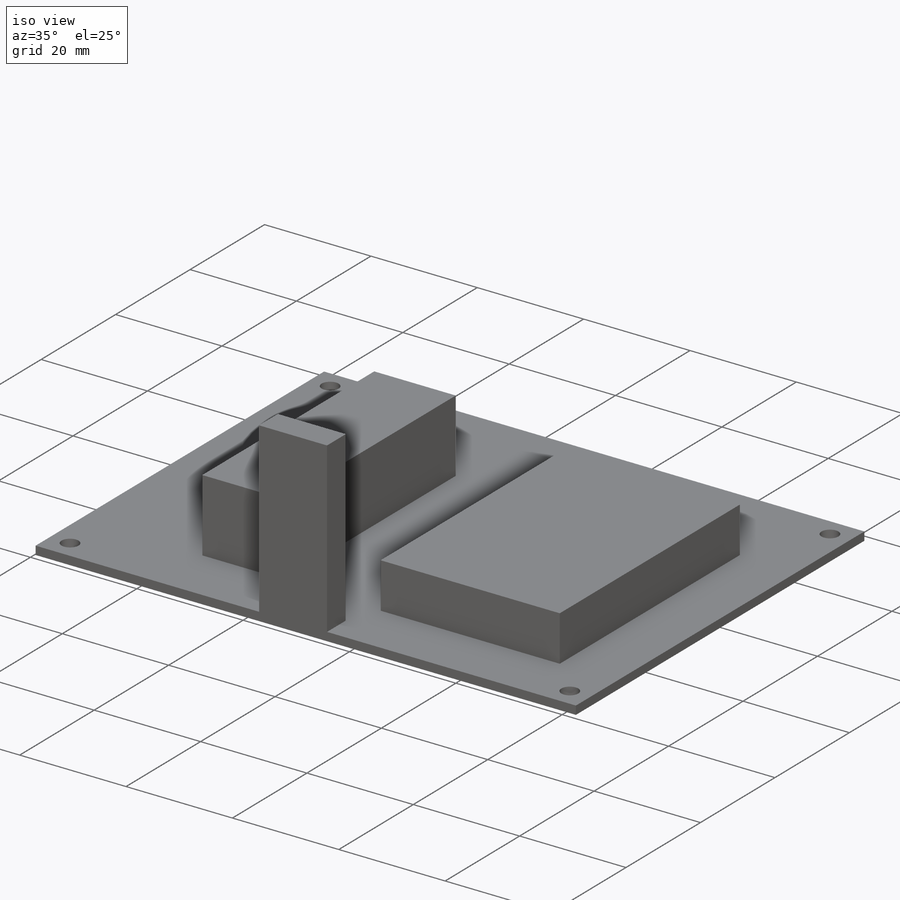
[diagram: iso view]
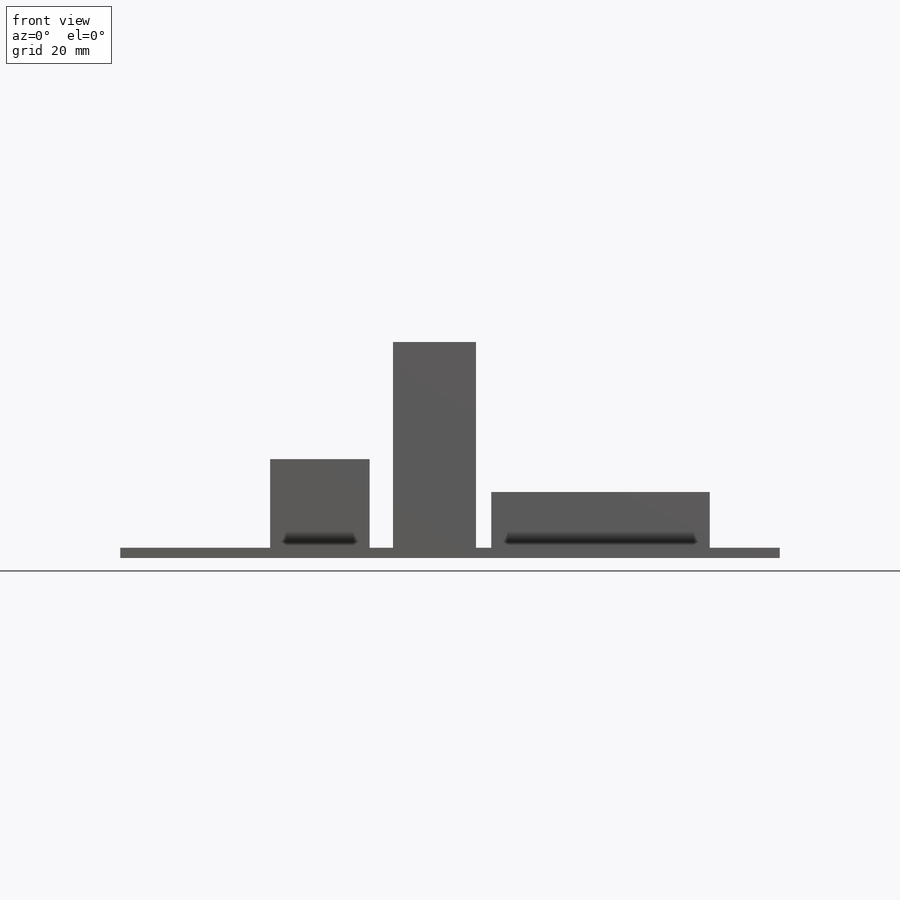
[diagram: front view]
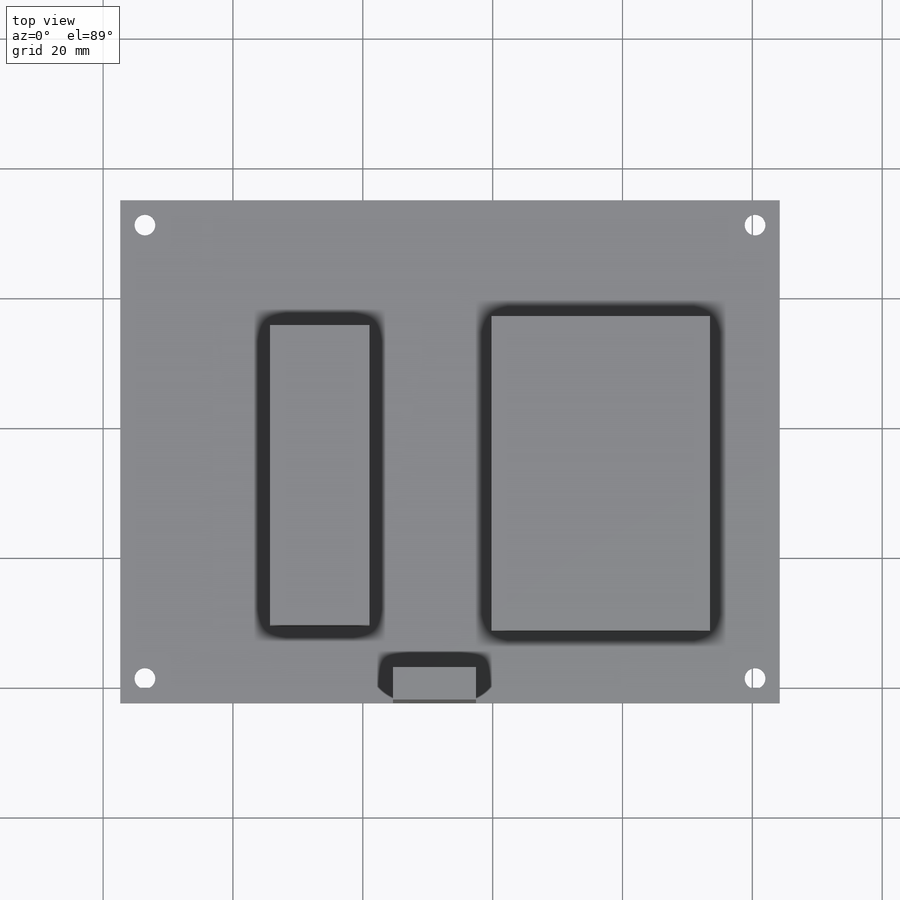
[diagram: top view]
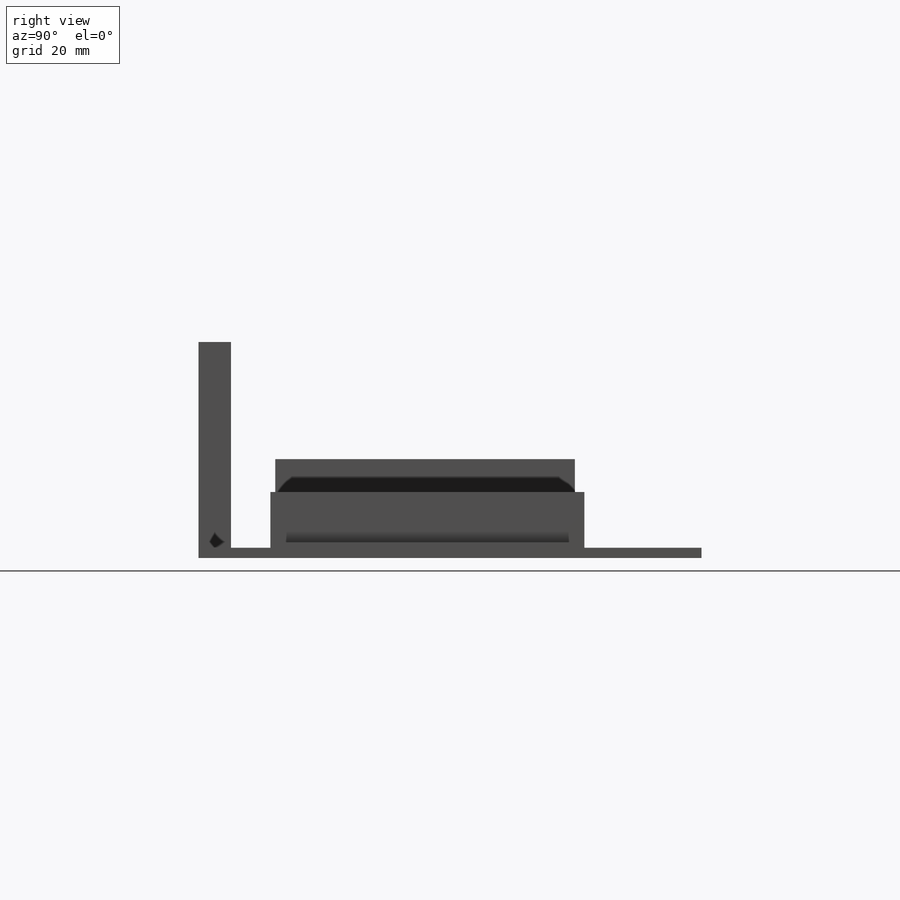
[diagram: right view]
SOLIDWORKS PART (.sldprt)
format: sldprt  version: not decoded by parser v0  size: 194,560 bytes
history: native  units: mm
features: sketch x5, extrude x4, material x1, cut_extrude x1 (+11 scaffold rows collapsed)
feature tree (22):
  scaffold x11  (default folders/planes/origin — collapsed)
  material  "Material <not specified>"
  sketch  "Sketch1"  dims[D1=101.6mm D2=77.47mm]
  extrude  "Boss-Extrude1"  Depth=1.5875mm
  sketch  "Sketch2"  dims[D5=3.2004mm D6=3.2004mm D7=3.2004mm D8=3.2004mm D1=3.81mm D2=3.81mm D3=73.66mm D4=97.79mm]
  cut_extrude  "Cut-Extrude1"  Depth=2.54mm
  sketch  "Sketch3"
  extrude  "Boss-Extrude2"  Depth=33.274mm
  sketch  "Sketch4"
  extrude  "Boss-Extrude3"  Depth=10.16mm
  sketch  "Sketch5"
  extrude  "Boss-Extrude4"  Depth=15.24mm
decode coverage: 7 of 10 modeling features carry decoded parameters
note: suppression state not decoded; provenance and decode notes live in map.json
